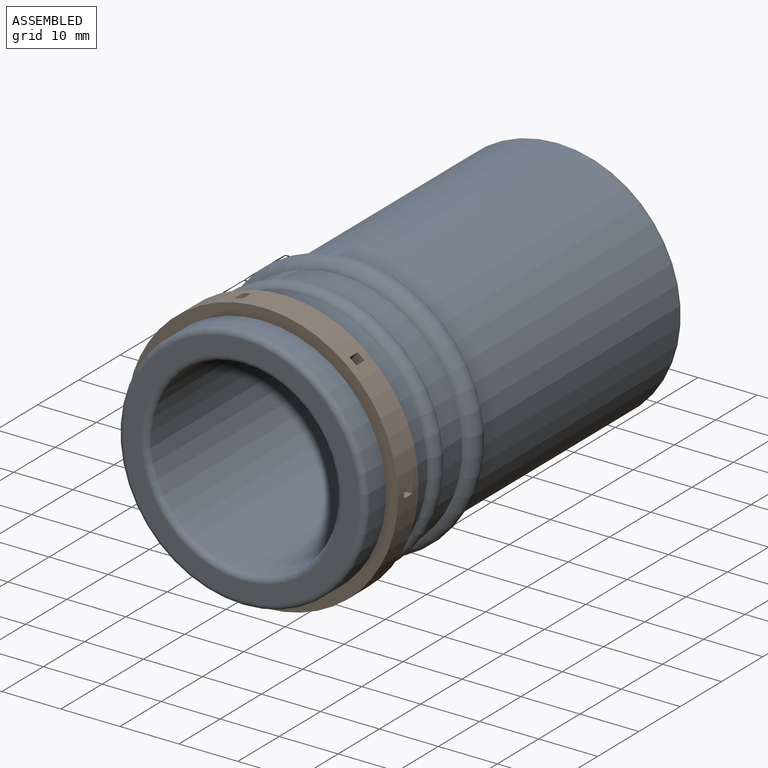
[diagram: assembled view]
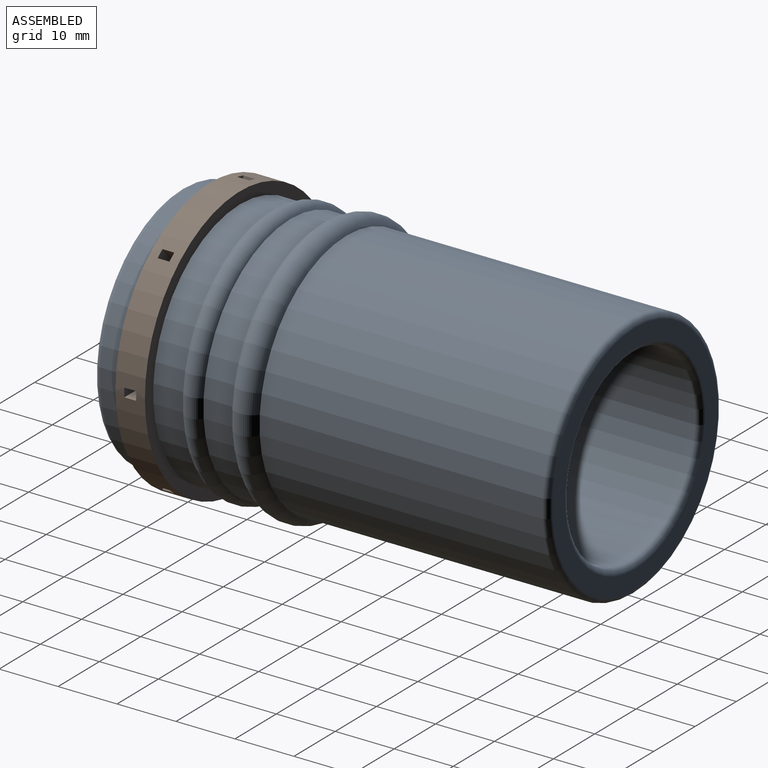
[diagram: assembled view, second angle]
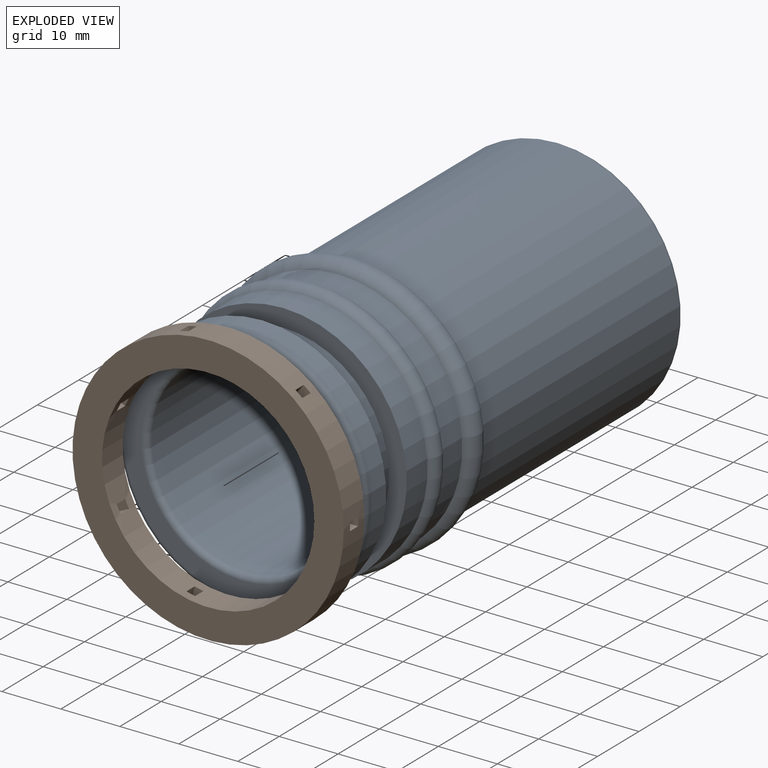
[diagram: exploded view]
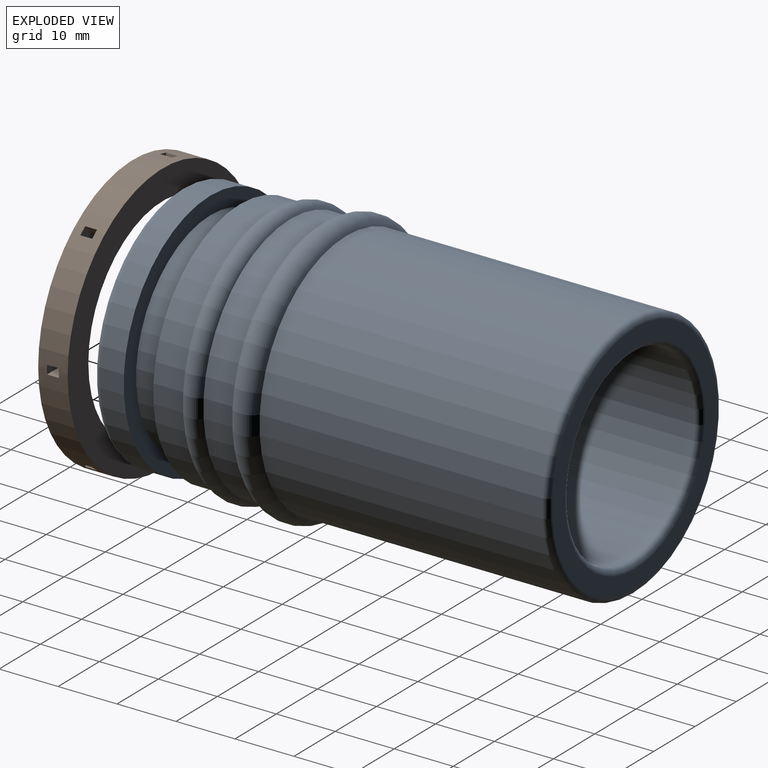
[diagram: exploded view, second angle]
ASSEMBLY  parts=2 mates=2
PART A: 16 faces, bbox 48.7x77x48.7 mm
  f0: plane 40x40mm, normal (0,-1,0), area 348.7mm2, adj f1,f15
  f1: torus R=17mm, axis (0,-1,0), area 161.5mm2, adj f0,f2
  f2: cylinder r=16mm len=75mm, axis (0,-1,0), area 7539.8mm2, adj f1,f3
  f3: torus R=17mm, axis (0,-1,0), area 161.5mm2, adj f2,f4
  f4: plane 40x40mm, normal (0,1,0), area 348.7mm2, adj f3,f5
  f5: torus R=20mm, axis (0,-1,0), area 203.7mm2, adj f4,f6
  f6: cylinder r=21mm len=47.97mm, axis (0,-1,0), area 6329.5mm2, adj f5,f7
  f7: torus R=20mm, axis (0,-1,0), area 800.4mm2, adj f6,f8
  f8: cylinder r=21mm len=42mm, axis (0,-1,0), area 651.7mm2, adj f7,f9
  f9: torus R=20mm, axis (0,-1,0), area 569.9mm2, adj f8,f10
  f10: cylinder r=21mm len=42mm, axis (0,-1,0), area 665.6mm2, adj f9,f11
  f11: plane 42x42mm, normal (0,-1,0), area 367.6mm2, adj f10,f12
  f12: cylinder r=18mm len=36mm, axis (0,-1,0), area 565.5mm2, adj f11,f13
  f13: plane 42x42mm, normal (0,1,0), area 367.6mm2, adj f12,f14
  f14: cylinder r=21mm len=42mm, axis (0,-1,0), area 527.8mm2, adj f13,f15
  f15: torus R=20mm, axis (0,-1,0), area 203.7mm2, adj f0,f14
PART B: 32 faces, bbox 46x46x5 mm
  f0: cylinder r=18mm len=36mm, axis (0,0,-1), area 544.5mm2, adj f2,f3,f4,f5,f6,f7,f8,f9
  f1: cylinder r=23mm len=46mm, axis (0,0,-1), area 701.6mm2, adj f2,f3,f4,f5,f6,f7,f8,f9
  f2: plane 46x46mm, normal (0,0,1), area 644mm2, adj f0,f1
  f3: plane 46x46mm, normal (0,0,-1), area 644mm2, adj f0,f1
  f4: plane 5.02x1.5mm, normal (0,0,-1), area 7.5mm2, adj f0,f1,f5,f7
  f5: plane 5x2mm, normal (0,1,0), area 10mm2, adj f0,f1,f4,f6
  f6: plane 5.02x1.5mm, normal (0,0,1), area 7.5mm2, adj f0,f1,f5,f7
  f7: plane 5x2mm, normal (0,-1,0), area 10mm2, adj f0,f1,f4,f6
  f8: plane 4.85x4.29mm, normal (0,0,-1), area 7.5mm2, adj f0,f1,f9,f11
  f9: plane 3.91x3.12mm, normal (-0.78,0.62,0), area 10mm2, adj f0,f1,f8,f10
  f10: plane 4.85x4.29mm, normal (0,0,1), area 7.5mm2, adj f0,f1,f9,f11
  f11: plane 3.91x3.12mm, normal (0.78,-0.62,0), area 10mm2, adj f0,f1,f8,f10
  f12: plane 5.21x2.58mm, normal (0,0,-1), area 7.5mm2, adj f0,f1,f13,f15
  f13: plane 4.88x2mm, normal (-0.97,-0.22,0), area 10mm2, adj f0,f1,f12,f14
  f14: plane 5.21x2.58mm, normal (0,0,1), area 7.5mm2, adj f0,f1,f13,f15
  f15: plane 4.88x2mm, normal (0.97,0.22,0), area 10mm2, adj f0,f1,f12,f14
  f16: plane 5.16x3.52mm, normal (0,0,-1), area 7.5mm2, adj f0,f1,f17,f19
  f17: plane 4.51x2.17mm, normal (-0.43,-0.9,0), area 10mm2, adj f0,f1,f16,f18
  f18: plane 5.16x3.52mm, normal (0,0,1), area 7.5mm2, adj f0,f1,f17,f19
  f19: plane 4.51x2.17mm, normal (0.43,0.9,0), area 10mm2, adj f0,f1,f16,f18
  f20: plane 5.16x3.52mm, normal (0,0,-1), area 7.5mm2, adj f0,f1,f21,f23
  f21: plane 4.51x2.17mm, normal (0.43,-0.9,0), area 10mm2, adj f0,f1,f20,f22
  f22: plane 5.16x3.52mm, normal (0,0,1), area 7.5mm2, adj f0,f1,f21,f23
  f23: plane 4.51x2.17mm, normal (-0.43,0.9,0), area 10mm2, adj f0,f1,f20,f22
  f24: plane 5.21x2.58mm, normal (0,0,-1), area 7.5mm2, adj f0,f1,f25,f27
  f25: plane 4.88x2mm, normal (0.97,-0.22,0), area 10mm2, adj f0,f1,f24,f26
  f26: plane 5.21x2.58mm, normal (0,0,1), area 7.5mm2, adj f0,f1,f25,f27
  f27: plane 4.88x2mm, normal (-0.97,0.22,0), area 10mm2, adj f0,f1,f24,f26
  f28: plane 4.85x4.29mm, normal (0,0,-1), area 7.5mm2, adj f0,f1,f29,f31
  f29: plane 3.91x3.12mm, normal (0.78,0.62,0), area 10mm2, adj f0,f1,f28,f30
  f30: plane 4.85x4.29mm, normal (0,0,1), area 7.5mm2, adj f0,f1,f29,f31
  f31: plane 3.91x3.12mm, normal (-0.78,-0.62,0), area 10mm2, adj f0,f1,f28,f30
PLACE A t=(-24.39,-15.87,10.36)mm
PLACE B rot(axis=(-1,0,0),90deg) t=(-24.39,-39.25,10.36)mm
MATE planar B.f1 <-> A.f1  axis (0,1,0) through (-24.39,-34.25,10.36)mm
MATE cylindrical B.f0 <-> A.f1  axis (0,-1,0) through (-24.39,-36.75,10.36)mm
